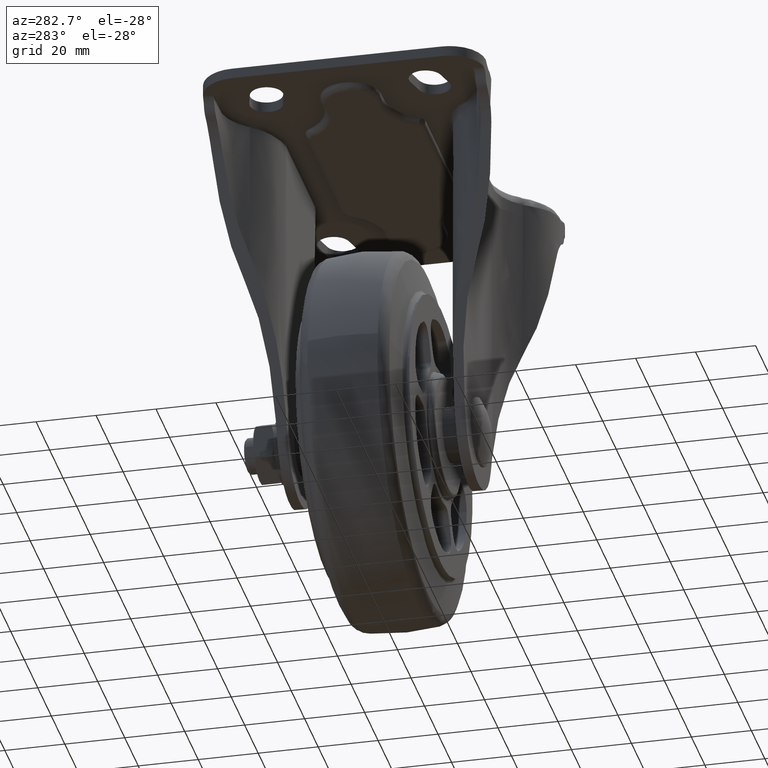
[diagram: clean part render]
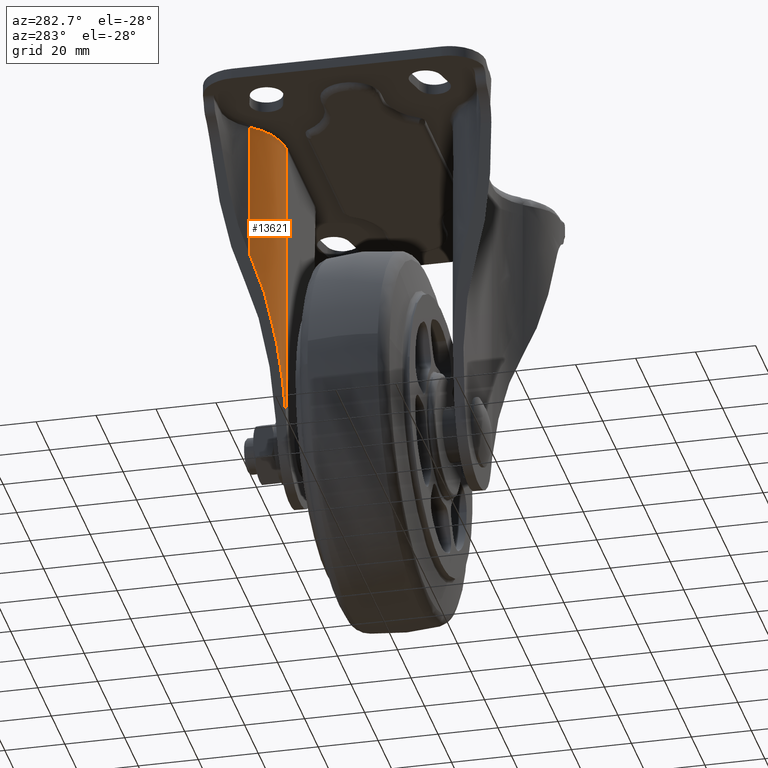
[diagram: same view with one face highlighted and labeled with its STEP entity id]
A machine part, auxiliary view. The second image highlights one B-rep face of the part: STEP entity #13621.
In plain terms, the highlighted face is a freeform B-spline surface patch.
Its self-contained STEP definition (entity closure, byte-faithful):
#11461=CARTESIAN_POINT('',(-20.381172492475201,28.0,101.0));
#11462=VERTEX_POINT('',#11461);
#11509=CARTESIAN_POINT('',(-37.376290127769749,36.331249999999997,101.0));
#11510=VERTEX_POINT('',#11509);
#11524=CARTESIAN_POINT('',(-20.381172492475152,28.0,101.0));
#11525=CARTESIAN_POINT('',(-30.920780328316756,28.000000000000004,101.0));
#11526=CARTESIAN_POINT('',(-37.376290127769721,36.331250000000033,101.0));
#11534=(BOUNDED_CURVE()B_SPLINE_CURVE(2,(#11524,#11525,#11526),.UNSPECIFIED.,.F.,.U.)CURVE()GEOMETRIC_REPRESENTATION_ITEM()QUASI_UNIFORM_CURVE()RATIONAL_B_SPLINE_CURVE((1.0,0.897914249803398,1.0))REPRESENTATION_ITEM(''));
#11535=EDGE_CURVE('',#11462,#11510,#11534,.T.);
#13233=CARTESIAN_POINT('',(-20.381172492475201,28.0,1.315067284115456));
#13234=VERTEX_POINT('',#13233);
#13240=CARTESIAN_POINT('',(-37.376290127769749,36.331249999999997,53.991997072762601));
#13241=VERTEX_POINT('',#13240);
#13242=CARTESIAN_POINT('',(-37.376290127769757,36.331250000000090,53.991997072762608));
#13243=CARTESIAN_POINT('',(-30.920780328316791,28.000000000000011,33.982930718935464));
#13244=CARTESIAN_POINT('',(-20.381172492475159,28.0,1.315067284115475));
#13252=(BOUNDED_CURVE()B_SPLINE_CURVE(2,(#13242,#13243,#13244),.UNSPECIFIED.,.F.,.U.)CURVE()GEOMETRIC_REPRESENTATION_ITEM()QUASI_UNIFORM_CURVE()RATIONAL_B_SPLINE_CURVE((1.0,0.897914249803397,1.0))REPRESENTATION_ITEM(''));
#13253=EDGE_CURVE('',#13241,#13234,#13252,.T.);
#13580=CARTESIAN_POINT('',(-20.381172492475201,28.0,1.315067284115456));
#13581=CARTESIAN_POINT('',(-20.381172492475201,28.0,101.0));
#13582=QUASI_UNIFORM_CURVE('',1,(#13580,#13581),.UNSPECIFIED.,.F.,.U.);
#13583=EDGE_CURVE('',#13234,#11462,#13582,.T.);
#13597=CARTESIAN_POINT('',(-19.529403803590959,28.016878948797238,-1.177056033781661));
#13598=CARTESIAN_POINT('',(-19.529403803590959,28.016878948797260,103.554426400844600));
#13599=CARTESIAN_POINT('',(-31.198186498666022,27.554231844897878,-1.177056033781646));
#13600=CARTESIAN_POINT('',(-31.198186498666022,27.554231844897888,103.554426400844590));
#13601=CARTESIAN_POINT('',(-37.938453427109465,37.090653273345829,-1.177056033781636));
#13602=CARTESIAN_POINT('',(-37.938453427109465,37.090653273345843,103.554426400844620));
#13610=(BOUNDED_SURFACE()B_SPLINE_SURFACE(1,2,((#13597,#13599,#13601),(#13598,#13600,#13602)),.UNSPECIFIED.,.F.,.F.,.U.)B_SPLINE_SURFACE_WITH_KNOTS((2,2),(3,3),(0.0,104.731482434626200),(0.0,21.848344782815030),.UNSPECIFIED.)GEOMETRIC_REPRESENTATION_ITEM()RATIONAL_B_SPLINE_SURFACE(((1.0,0.874888935870262,0.991250545471244),(1.0,0.874888935870262,0.991250545471244)))REPRESENTATION_ITEM('')SURFACE());
#13611=ORIENTED_EDGE('',*,*,#13583,.T.);
#13612=ORIENTED_EDGE('',*,*,#11535,.T.);
#13613=CARTESIAN_POINT('',(-37.376290127769749,36.331249999999997,53.991997072762601));
#13614=CARTESIAN_POINT('',(-37.376290127769749,36.331249999999997,101.0));
#13615=QUASI_UNIFORM_CURVE('',1,(#13613,#13614),.UNSPECIFIED.,.F.,.U.);
#13616=EDGE_CURVE('',#13241,#11510,#13615,.T.);
#13617=ORIENTED_EDGE('',*,*,#13616,.F.);
#13618=ORIENTED_EDGE('',*,*,#13253,.T.);
#13619=EDGE_LOOP('',(#13611,#13612,#13617,#13618));
#13620=FACE_OUTER_BOUND('',#13619,.T.);
#13621=ADVANCED_FACE('',(#13620),#13610,.T.);